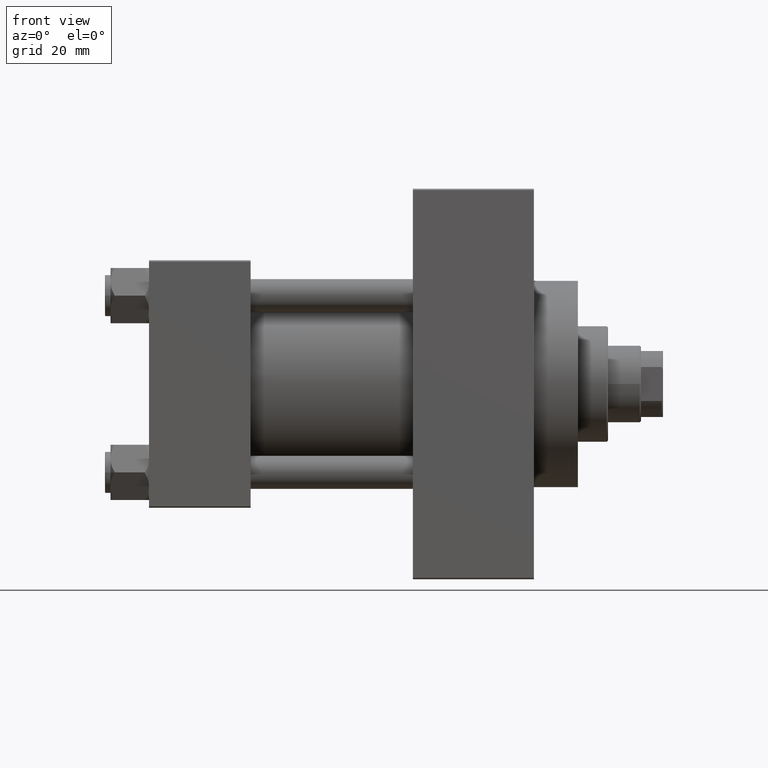
[diagram: clean part render]
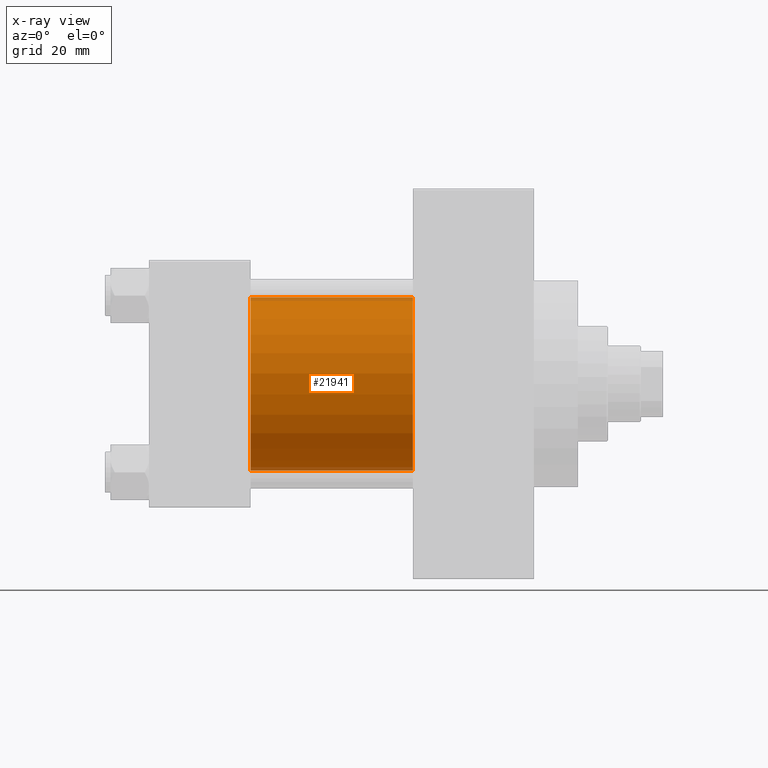
[diagram: x-ray — body ghosted, one internal face saturated and labeled with its STEP entity id]
A machine part, front view, then the same camera in x-ray: the body is ghosted and one INTERNAL B-rep face — a face not visible from any outside direction — is saturated and labeled: STEP entity #21941.
In plain terms, the highlighted cylindrical surface (partial cylindrical patch) has radius 31.5 mm, axis along (-1, -0, -0).
Its self-contained STEP definition (entity closure, byte-faithful):
#388 = CIRCLE ( 'NONE', #17120, 31.50000000000000000 ) ;
#636 = VERTEX_POINT ( 'NONE', #16586 ) ;
#3363 = EDGE_CURVE ( 'NONE', #43777, #17573, #388, .T. ) ;
#3590 = DIRECTION ( 'NONE',  ( 0.000000000000000000, 0.000000000000000000, -1.000000000000000000 ) ) ;
#3907 = CARTESIAN_POINT ( 'NONE',  ( 96.00000000000000000, 1.255552203348951850E-15, -31.50000000000000000 ) ) ;
#4317 = DIRECTION ( 'NONE',  ( 0.000000000000000000, 0.000000000000000000, 1.000000000000000000 ) ) ;
#4814 = CARTESIAN_POINT ( 'NONE',  ( 96.00000000000000000, -2.602085213965210642E-15, 0.000000000000000000 ) ) ;
#6232 = CIRCLE ( 'NONE', #14217, 31.50000000000000000 ) ;
#8398 = ORIENTED_EDGE ( 'NONE', *, *, #27085, .F. ) ;
#10601 = CARTESIAN_POINT ( 'NONE',  ( 37.00000000000000000, -2.602085213965210642E-15, 0.000000000000000000 ) ) ;
#14217 = AXIS2_PLACEMENT_3D ( 'NONE', #10601, #25809, #3590 ) ;
#14863 = ORIENTED_EDGE ( 'NONE', *, *, #3363, .T. ) ;
#15009 = EDGE_CURVE ( 'NONE', #636, #41171, #6232, .T. ) ;
#15558 = CYLINDRICAL_SURFACE ( 'NONE', #47068, 31.50000000000000000 ) ;
#15559 = DIRECTION ( 'NONE',  ( 1.000000000000000000, 0.000000000000000000, 0.000000000000000000 ) ) ;
#16141 = EDGE_CURVE ( 'NONE', #17573, #41171, #30839, .T. ) ;
#16531 = FACE_OUTER_BOUND ( 'NONE', #45273, .T. ) ;
#16586 = CARTESIAN_POINT ( 'NONE',  ( 37.00000000000000000, -2.602085213965210642E-15, 31.50000000000000000 ) ) ;
#17120 = AXIS2_PLACEMENT_3D ( 'NONE', #4814, #15559, #42706 ) ;
#17573 = VERTEX_POINT ( 'NONE', #36268 ) ;
#18046 = CARTESIAN_POINT ( 'NONE',  ( 96.00000000000000000, -2.602085213965210642E-15, 31.50000000000000000 ) ) ;
#21309 = CARTESIAN_POINT ( 'NONE',  ( 37.00000000000000000, 1.255552203348951850E-15, -31.50000000000000000 ) ) ;
#21418 = VECTOR ( 'NONE', #22880, 1000.000000000000000 ) ;
#21941 = ADVANCED_FACE ( 'NONE', ( #16531 ), #15558, .F. ) ;
#22880 = DIRECTION ( 'NONE',  ( -1.000000000000000000, -0.000000000000000000, -0.000000000000000000 ) ) ;
#25809 = DIRECTION ( 'NONE',  ( 1.000000000000000000, 0.000000000000000000, 0.000000000000000000 ) ) ;
#27085 = EDGE_CURVE ( 'NONE', #43777, #636, #33975, .T. ) ;
#30242 = CARTESIAN_POINT ( 'NONE',  ( 96.00000000000000000, -2.602085213965210642E-15, 31.50000000000000000 ) ) ;
#30839 = LINE ( 'NONE', #3907, #21418 ) ;
#33975 = LINE ( 'NONE', #18046, #38417 ) ;
#34752 = DIRECTION ( 'NONE',  ( -1.000000000000000000, -0.000000000000000000, -0.000000000000000000 ) ) ;
#35079 = ORIENTED_EDGE ( 'NONE', *, *, #15009, .F. ) ;
#35118 = ORIENTED_EDGE ( 'NONE', *, *, #16141, .T. ) ;
#36268 = CARTESIAN_POINT ( 'NONE',  ( 96.00000000000000000, 1.255552203348951850E-15, -31.50000000000000000 ) ) ;
#38417 = VECTOR ( 'NONE', #41695, 1000.000000000000000 ) ;
#41171 = VERTEX_POINT ( 'NONE', #21309 ) ;
#41695 = DIRECTION ( 'NONE',  ( -1.000000000000000000, -0.000000000000000000, -0.000000000000000000 ) ) ;
#42706 = DIRECTION ( 'NONE',  ( 0.000000000000000000, 0.000000000000000000, -1.000000000000000000 ) ) ;
#43189 = CARTESIAN_POINT ( 'NONE',  ( 96.00000000000000000, -2.602085213965210642E-15, 0.000000000000000000 ) ) ;
#43777 = VERTEX_POINT ( 'NONE', #30242 ) ;
#45273 = EDGE_LOOP ( 'NONE', ( #14863, #35118, #35079, #8398 ) ) ;
#47068 = AXIS2_PLACEMENT_3D ( 'NONE', #43189, #34752, #4317 ) ;